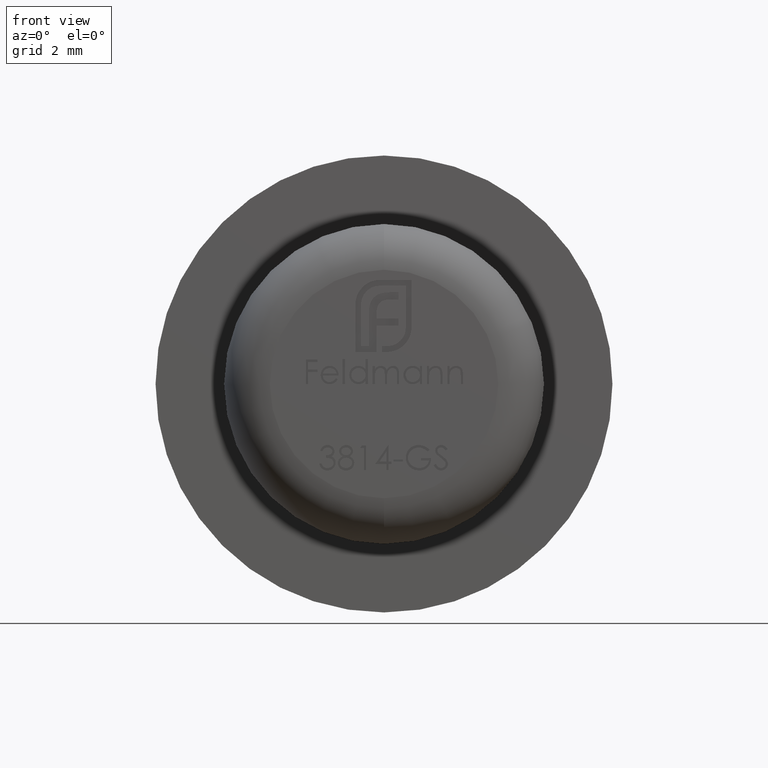
[diagram: clean part render]
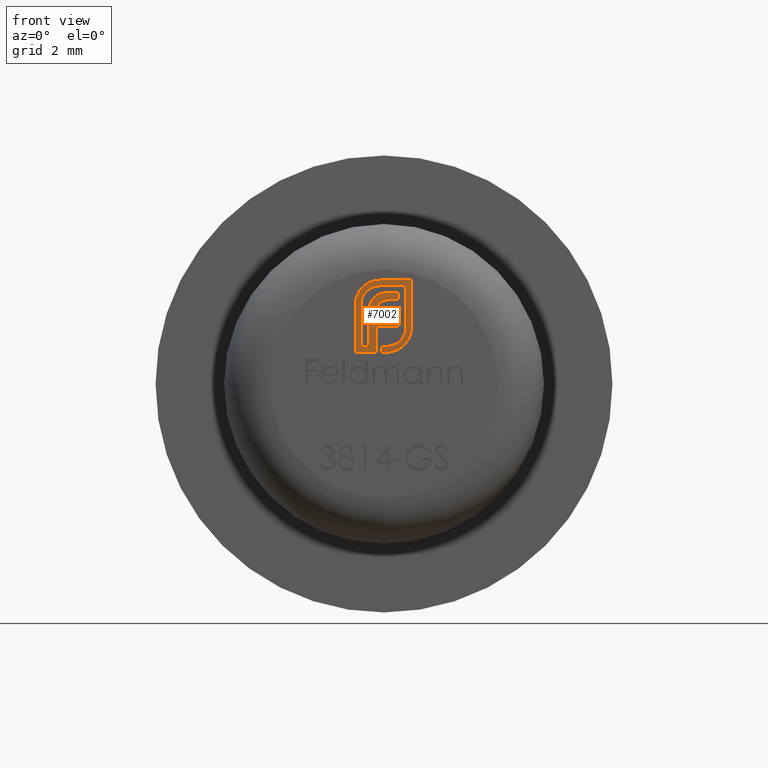
[diagram: same view with one face highlighted and labeled with its STEP entity id]
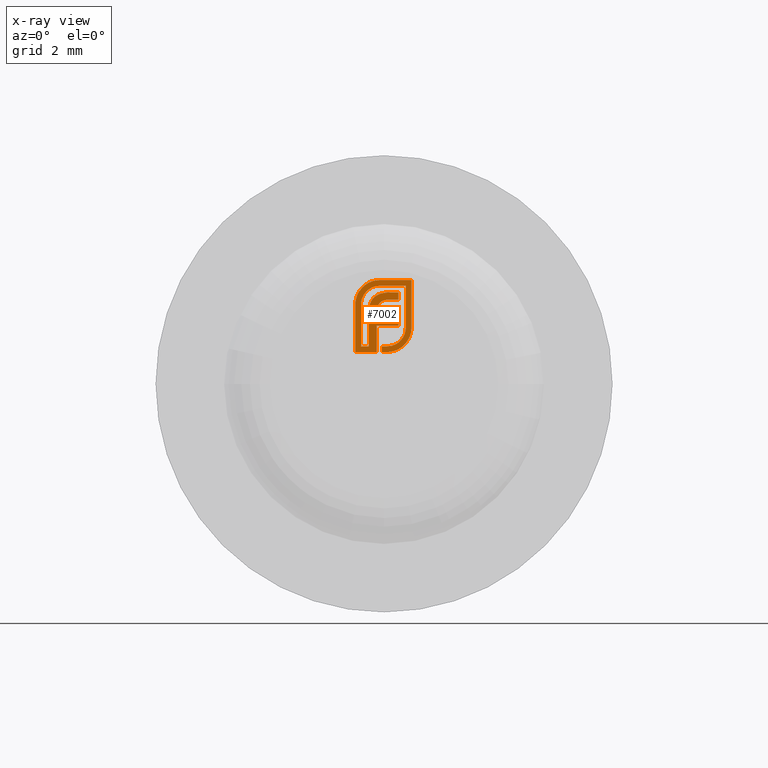
[diagram: x-ray of the same camera — body ghosted, the highlighted face saturated]
A machine part, front view. The second image highlights one B-rep face of the part: STEP entity #7002.
The next image is the same camera in x-ray: the body ghosted, the highlighted face saturated — about 0% of this face is hidden behind the body in this view.
In plain terms, the highlighted planar face has unit normal (0, -1, -0).
Its self-contained STEP definition (entity closure, byte-faithful):
#7 = VECTOR ( 'NONE', #5181, 1000.000000000000000 ) ;
#162 = B_SPLINE_CURVE_WITH_KNOTS ( 'NONE', 3,
 ( #6956, #7006, #3721, #10169, #1714, #1662, #4763 ),
 .UNSPECIFIED., .F., .F.,
 ( 4, 1, 1, 1, 4 ),
 ( 0.000000000000000000, 0.2555069489946573680, 0.5046917175512062315, 0.7514670339421763989, 1.000000000000000000 ),
 .UNSPECIFIED. ) ;
#182 = CARTESIAN_POINT ( 'NONE',  ( 0.3464064807069742735, -1.399999999999999911, 0.7802610010905871585 ) ) ;
#195 = VECTOR ( 'NONE', #7096, 1000.000000000000000 ) ;
#206 = EDGE_CURVE ( 'NONE', #2891, #8756, #13386, .T. ) ;
#235 = CARTESIAN_POINT ( 'NONE',  ( -0.6266778965153044778, -1.399999999999999911, 1.220091287067004426 ) ) ;
#246 = DIRECTION ( 'NONE',  ( -1.000000000000000000, 5.065670863277532666E-13, -2.532835431638766333E-13 ) ) ;
#310 = CARTESIAN_POINT ( 'NONE',  ( -0.3342068085412049361, -1.399999999999999911, 1.551729743573311060 ) ) ;
#317 = CARTESIAN_POINT ( 'NONE',  ( 0.3139810362663770227, -1.399999999999999911, 1.272100415773705251 ) ) ;
#325 = ORIENTED_EDGE ( 'NONE', *, *, #4786, .F. ) ;
#385 = ORIENTED_EDGE ( 'NONE', *, *, #5849, .F. ) ;
#438 = CARTESIAN_POINT ( 'NONE',  ( -0.09342380526944338293, -1.399999999999999911, 1.774855326605143224 ) ) ;
#486 = CARTESIAN_POINT ( 'NONE',  ( -0.3817213211868324962, -1.399999999999999911, 2.028480090051398843 ) ) ;
#510 = CARTESIAN_POINT ( 'NONE',  ( 0.07209144354448078496, -1.400000000000000577, 2.004098269643667329 ) ) ;
#613 = CARTESIAN_POINT ( 'NONE',  ( -0.09342380526944338293, -1.399999999999999911, 1.774855326605143224 ) ) ;
#648 = EDGE_CURVE ( 'NONE', #13918, #12895, #3933, .T. ) ;
#682 = AXIS2_PLACEMENT_3D ( 'NONE', #3416, #4468, #9908 ) ;
#714 = VECTOR ( 'NONE', #4427, 1000.000000000000000 ) ;
#767 = CARTESIAN_POINT ( 'NONE',  ( -0.1538796617843954384, -1.399999999999999689, 1.664595039721976866 ) ) ;
#777 = CARTESIAN_POINT ( 'NONE',  ( -0.6151168595099373304, -1.399999999999999911, 1.851738840814235898 ) ) ;
#799 = CARTESIAN_POINT ( 'NONE',  ( -0.01348384818321865346, -1.399999999999999911, 1.826864455311843827 ) ) ;
#822 = CARTESIAN_POINT ( 'NONE',  ( -0.3817213211868324962, -1.399999999999999911, 2.028480090051398843 ) ) ;
#868 = CARTESIAN_POINT ( 'NONE',  ( -0.6266778965153045888, -1.399999999999999911, 1.740182574134009785 ) ) ;
#869 = LINE ( 'NONE', #8298, #6402 ) ;
#903 = CARTESIAN_POINT ( 'NONE',  ( -0.5464168954247173859, -1.399999999999999911, 2.019811901933615150 ) ) ;
#924 = CARTESIAN_POINT ( 'NONE',  ( 0.09920259734796574302, -1.399999999999999911, 1.844200831547410546 ) ) ;
#953 = CARTESIAN_POINT ( 'NONE',  ( -0.5526862996281267648, -1.399999999999999689, 2.009525745221083071 ) ) ;
#1000 = DIRECTION ( 'NONE',  ( -2.042609219063488015E-15, -1.634087375250790412E-14, -1.000000000000000000 ) ) ;
#1012 = DIRECTION ( 'NONE',  ( -1.000000000000000000, 0.000000000000000000, 0.000000000000000000 ) ) ;
#1022 = CARTESIAN_POINT ( 'NONE',  ( -0.5030759548358003652, -1.399999999999999911, 1.740182574134009785 ) ) ;
#1056 = CARTESIAN_POINT ( 'NONE',  ( 0.2207177529991146692, -1.399999999999999911, 2.004722833728584952 ) ) ;
#1106 = VERTEX_POINT ( 'NONE', #13604 ) ;
#1174 = CARTESIAN_POINT ( 'NONE',  ( -0.09149754124326933691, -1.399999999999999911, 2.273436665379870547 ) ) ;
#1178 = B_SPLINE_CURVE_WITH_KNOTS ( 'NONE', 3,
 ( #12474, #8229, #2943, #10378, #11395, #1836, #7130 ),
 .UNSPECIFIED., .F., .F.,
 ( 4, 1, 1, 1, 4 ),
 ( 0.000000000000000000, 0.2749164360065413648, 0.5318693224296920929, 0.7742077911772953236, 1.000000000000000000 ),
 .UNSPECIFIED. ) ;
#1203 = CARTESIAN_POINT ( 'NONE',  ( -0.05008286468052630669, -1.399999999999999467, 0.7618009708397520674 ) ) ;
#1226 = LINE ( 'NONE', #3328, #714 ) ;
#1241 = VECTOR ( 'NONE', #7304, 1000.000000000000000 ) ;
#1268 = CARTESIAN_POINT ( 'NONE',  ( 0.2492984954248775031, -1.399999999999999911, 0.7321934760755950400 ) ) ;
#1395 = CARTESIAN_POINT ( 'NONE',  ( 0.3254224432789727395, -1.399999999999999911, 0.9142801921724267311 ) ) ;
#1399 = EDGE_CURVE ( 'NONE', #1740, #11941, #9006, .T. ) ;
#1459 = CARTESIAN_POINT ( 'NONE',  ( -0.03011791140350639912, -1.399999999999999467, 1.990236636657559899 ) ) ;
#1589 = CARTESIAN_POINT ( 'NONE',  ( 0.1274544697318524267, -1.399999999999999911, 2.004722833728584952 ) ) ;
#1614 = CARTESIAN_POINT ( 'NONE',  ( -0.1608430461855366589, -1.399999999999999467, 0.7618009708397521784 ) ) ;
#1655 = CARTESIAN_POINT ( 'NONE',  ( -0.09908020847376448892, -1.400000000000000133, 1.768913224541546869 ) ) ;
#1662 = CARTESIAN_POINT ( 'NONE',  ( 0.5414938266690497715, -1.399999999999999911, 0.9910123190655282244 ) ) ;
#1714 = CARTESIAN_POINT ( 'NONE',  ( 0.5630335657239327052, -1.399999999999999467, 1.030972873913230892 ) ) ;
#1725 = CARTESIAN_POINT ( 'NONE',  ( 0.5306857392109624039, -1.399999999999999911, 0.9709611396818222939 ) ) ;
#1740 = VERTEX_POINT ( 'NONE', #13479 ) ;
#1836 = CARTESIAN_POINT ( 'NONE',  ( -0.3102806739426294813, -1.400000000000000133, 1.736502125879358038 ) ) ;
#1915 = EDGE_CURVE ( 'NONE', #2221, #11333, #2158, .T. ) ;
#1926 = VERTEX_POINT ( 'NONE', #11746 ) ;
#1934 = CARTESIAN_POINT ( 'NONE',  ( -0.01348384818321865346, -1.399999999999999911, 1.826864455311843827 ) ) ;
#1955 = CARTESIAN_POINT ( 'NONE',  ( -0.6215648771155739549, -1.399999999999999689, 1.814948668682911270 ) ) ;
#1973 = CARTESIAN_POINT ( 'NONE',  ( 0.2542668514549800696, -1.399999999999999911, 2.273436665379870547 ) ) ;
#1998 = EDGE_CURVE ( 'NONE', #11855, #13918, #7895, .T. ) ;
#2058 = CARTESIAN_POINT ( 'NONE',  ( -0.3059549361573182802, -1.400000000000000133, 1.751098070282329555 ) ) ;
#2059 = CARTESIAN_POINT ( 'NONE',  ( 0.4020854829790100338, -1.399999999999999689, 0.8166518874194858002 ) ) ;
#2069 = VERTEX_POINT ( 'NONE', #3083 ) ;
#2104 = CARTESIAN_POINT ( 'NONE',  ( -0.5020206179872228613, -1.399999999999999689, 1.781359343667026529 ) ) ;
#2118 = CARTESIAN_POINT ( 'NONE',  ( -0.2192730549794841000, -1.399999999999999911, 1.892036388197400498 ) ) ;
#2141 = VERTEX_POINT ( 'NONE', #3363 ) ;
#2158 = LINE ( 'NONE', #8498, #4678 ) ;
#2221 = VERTEX_POINT ( 'NONE', #12133 ) ;
#2227 = B_SPLINE_CURVE_WITH_KNOTS ( 'NONE', 3,
 ( #924, #7349, #9695, #5326, #11755, #12883, #11617 ),
 .UNSPECIFIED., .F., .F.,
 ( 4, 1, 1, 1, 4 ),
 ( 0.000000000000000000, 0.2663974462967137469, 0.5202005568595406970, 0.7659044003744400753, 1.000000000000000000 ),
 .UNSPECIFIED. ) ;
#2257 = B_SPLINE_CURVE_WITH_KNOTS ( 'NONE', 3,
 ( #2570, #13418, #1459, #6926, #510, #8025, #1589 ),
 .UNSPECIFIED., .F., .F.,
 ( 4, 1, 1, 1, 4 ),
 ( 0.000000000000000000, 0.2276569999735642003, 0.4694281465559008715, 0.7260056040721210024, 0.9999999999999998890 ),
 .UNSPECIFIED. ) ;
#2258 = VECTOR ( 'NONE', #246, 1000.000000000000000 ) ;
#2376 = VERTEX_POINT ( 'NONE', #1725 ) ;
#2418 = CARTESIAN_POINT ( 'NONE',  ( 0.1062121804121565760, -1.400000000000000355, 0.8247461958212897182 ) ) ;
#2429 = ORIENTED_EDGE ( 'NONE', *, *, #4527, .F. ) ;
#2439 = VERTEX_POINT ( 'NONE', #9408 ) ;
#2525 = B_SPLINE_CURVE_WITH_KNOTS ( 'NONE', 3,
 ( #4327, #3136, #3277, #13045, #4417, #13941, #1174 ),
 .UNSPECIFIED., .F., .F.,
 ( 4, 1, 1, 1, 4 ),
 ( 0.000000000000000000, 0.2478826274969465893, 0.4929796761389065862, 0.7427507537512864078, 1.000000000000000000 ),
 .UNSPECIFIED. ) ;
#2555 = CARTESIAN_POINT ( 'NONE',  ( 0.1858668806635206394, -1.399999999999999911, 0.8394897203548127296 ) ) ;
#2570 = CARTESIAN_POINT ( 'NONE',  ( -0.07608742903387663570, -1.399999999999999911, 1.976470961344698463 ) ) ;
#2590 = CARTESIAN_POINT ( 'NONE',  ( -0.1424649662289072805, -1.400000000000000133, 1.698560662387370801 ) ) ;
#2598 = CARTESIAN_POINT ( 'NONE',  ( 0.1468700919530100402, -1.399999999999999689, 0.8302980801964835456 ) ) ;
#2629 = CARTESIAN_POINT ( 'NONE',  ( 0.4753705477808834456, -1.399999999999999911, 1.192079645065013960 ) ) ;
#2715 = CARTESIAN_POINT ( 'NONE',  ( 0.09920259734796574302, -1.399999999999999911, 1.844200831547410546 ) ) ;
#2762 = CARTESIAN_POINT ( 'NONE',  ( 0.3648228534734846984, -1.399999999999999689, 0.9528955346264389448 ) ) ;
#2799 = B_SPLINE_CURVE_WITH_KNOTS ( 'NONE', 3,
 ( #182, #11947, #10925, #13039, #1268, #8893, #6698 ),
 .UNSPECIFIED., .F., .F.,
 ( 4, 1, 1, 1, 4 ),
 ( 0.000000000000000000, 0.2488753435753170151, 0.4952112276297841453, 0.7474262806159168715, 0.9999999999999998890 ),
 .UNSPECIFIED. ) ;
#2858 = VERTEX_POINT ( 'NONE', #3261 ) ;
#2864 = CARTESIAN_POINT ( 'NONE',  ( 0.3139810362663770227, -1.399999999999999911, 1.924461832637997860 ) ) ;
#2891 = VERTEX_POINT ( 'NONE', #8977 ) ;
#2934 = CARTESIAN_POINT ( 'NONE',  ( 0.007223490098152914561, -1.400000000000000133, 0.8236019416795042902 ) ) ;
#2943 = CARTESIAN_POINT ( 'NONE',  ( -0.3330290783713795166, -1.399999999999999911, 1.606096214281615531 ) ) ;
#2996 = CARTESIAN_POINT ( 'NONE',  ( -0.2094458852274188876, -1.400000000000000133, 1.901105039930010454 ) ) ;
#3046 = CARTESIAN_POINT ( 'NONE',  ( -0.07608742903387663570, -1.399999999999999911, 1.976470961344698463 ) ) ;
#3083 = CARTESIAN_POINT ( 'NONE',  ( -0.09149754124326933691, -1.399999999999999911, 2.273436665379870547 ) ) ;
#3086 = CARTESIAN_POINT ( 'NONE',  ( 0.3464064807069742735, -1.399999999999999911, 0.7802610010905871585 ) ) ;
#3128 = CARTESIAN_POINT ( 'NONE',  ( -0.2476195453507725464, -1.399999999999999911, 1.862791797831173213 ) ) ;
#3136 = CARTESIAN_POINT ( 'NONE',  ( -0.3355539830052384209, -1.399999999999999911, 2.214888796020728634 ) ) ;
#3142 = CARTESIAN_POINT ( 'NONE',  ( -0.1173544935938992395, -1.399999999999999467, 1.962028224214924510 ) ) ;
#3178 = CARTESIAN_POINT ( 'NONE',  ( -0.5027215687850147274, -1.399999999999999911, 1.754009886957003772 ) ) ;
#3198 = VECTOR ( 'NONE', #8734, 1000.000000000000000 ) ;
#3201 = ORIENTED_EDGE ( 'NONE', *, *, #9132, .F. ) ;
#3253 = EDGE_CURVE ( 'NONE', #10474, #12007, #12919, .T. ) ;
#3261 = CARTESIAN_POINT ( 'NONE',  ( 0.4764293024737254467, -1.399999999999999911, 1.233254091245861161 ) ) ;
#3277 = CARTESIAN_POINT ( 'NONE',  ( -0.2954550143430148545, -1.400000000000000133, 2.236362728851703618 ) ) ;
#3310 = CARTESIAN_POINT ( 'NONE',  ( 0.2020934698024990095, -1.399999999999999911, 0.7184081431567076459 ) ) ;
#3328 = CARTESIAN_POINT ( 'NONE',  ( 0.1924658806152280965, -1.400000000000000133, 2.149834723700366546 ) ) ;
#3356 = VERTEX_POINT ( 'NONE', #10756 ) ;
#3360 = CARTESIAN_POINT ( 'NONE',  ( 0.1029503891757706652, -1.400000000000000577, 0.7006325115128705372 ) ) ;
#3363 = CARTESIAN_POINT ( 'NONE',  ( -0.1627693102117107882, -1.400000000000000133, 1.430375109924343580 ) ) ;
#3374 = ORIENTED_EDGE ( 'NONE', *, *, #6648, .F. ) ;
#3416 = CARTESIAN_POINT ( 'NONE',  ( -0.2283076263732145283, -1.400000000000000133, 2.256591729147437775 ) ) ;
#3434 = LINE ( 'NONE', #2934, #6788 ) ;
#3489 = CARTESIAN_POINT ( 'NONE',  ( 0.3451128414941084244, -1.399999999999999689, 0.9331583640399967461 ) ) ;
#3504 = PLANE ( 'NONE',  #682 ) ;
#3632 = CARTESIAN_POINT ( 'NONE',  ( 0.2926670429109231586, -1.399999999999999911, 0.8904672383340489494 ) ) ;
#3636 = VERTEX_POINT ( 'NONE', #8371 ) ;
#3652 = ORIENTED_EDGE ( 'NONE', *, *, #6953, .F. ) ;
#3721 = CARTESIAN_POINT ( 'NONE',  ( 0.5979295567516516030, -1.399999999999999911, 1.163624047886059110 ) ) ;
#3723 = VERTEX_POINT ( 'NONE', #9756 ) ;
#3786 = LINE ( 'NONE', #11949, #10232 ) ;
#3815 = CARTESIAN_POINT ( 'NONE',  ( -0.1103775231636088816, -1.399999999999999689, 1.757045294603251095 ) ) ;
#3849 = CARTESIAN_POINT ( 'NONE',  ( 0.4294090993714942961, -1.400000000000000133, 1.039915010332884249 ) ) ;
#3861 = CARTESIAN_POINT ( 'NONE',  ( -0.1626641241287705431, -1.399999999999999689, 1.587916566458455581 ) ) ;
#3933 = LINE ( 'NONE', #13381, #12200 ) ;
#3988 = DIRECTION ( 'NONE',  ( 0.000000000000000000, 2.329044075070062101E-14, -1.000000000000000000 ) ) ;
#4096 = CARTESIAN_POINT ( 'NONE',  ( -0.5090059080158666482, -1.399999999999999911, 2.075222156166653509 ) ) ;
#4143 = CARTESIAN_POINT ( 'NONE',  ( -0.5339075503230429343, -1.399999999999999911, 2.038339774101153523 ) ) ;
#4165 = CARTESIAN_POINT ( 'NONE',  ( -0.05008286468052630669, -1.399999999999999911, 0.6999999999999999556 ) ) ;
#4190 = CARTESIAN_POINT ( 'NONE',  ( -0.1895676791302125797, -1.399999999999999689, 1.919448930664849007 ) ) ;
#4270 = CARTESIAN_POINT ( 'NONE',  ( -0.4959877368286570443, -1.400000000000000133, 1.821434026707061005 ) ) ;
#4285 = CARTESIAN_POINT ( 'NONE',  ( -0.1549536195330045163, -1.400000000000000577, 1.941899743624573293 ) ) ;
#4300 = B_SPLINE_CURVE_WITH_KNOTS ( 'NONE', 3,
 ( #4670, #4949, #5931, #12491, #10349, #13585, #12302, #11365, #8052, #10211, #486 ),
 .UNSPECIFIED., .F., .F.,
 ( 4, 1, 1, 1, 1, 1, 1, 1, 4 ),
 ( 0.000000000000000000, 0.1301676365660976442, 0.2555231392837343796, 0.3790297504302641007, 0.5002170846485114453, 0.6227425632618522888, 0.7453202992625188594, 0.8707857905346592098, 0.9999999999999998890 ),
 .UNSPECIFIED. ) ;
#4320 = CARTESIAN_POINT ( 'NONE',  ( 0.4510574722669823955, -1.400000000000000577, 0.8619254455174258922 ) ) ;
#4327 = CARTESIAN_POINT ( 'NONE',  ( -0.3557167568334823060, -1.399999999999999911, 2.204091160437603225 ) ) ;
#4387 = DIRECTION ( 'NONE',  ( 1.000000000000000000, 0.000000000000000000, 0.000000000000000000 ) ) ;
#4407 = CARTESIAN_POINT ( 'NONE',  ( 0.1407958647626590121, -1.399999999999999689, 0.7050845955702828016 ) ) ;
#4417 = CARTESIAN_POINT ( 'NONE',  ( -0.1619744936170346705, -1.400000000000000133, 2.271338766088632166 ) ) ;
#4427 = DIRECTION ( 'NONE',  ( -1.000000000000000000, 0.000000000000000000, 0.000000000000000000 ) ) ;
#4451 = ORIENTED_EDGE ( 'NONE', *, *, #1998, .F. ) ;
#4468 = DIRECTION ( 'NONE',  ( 8.331963062060267283E-15, -1.000000000000000000, -1.555854385641174220E-14 ) ) ;
#4471 = VERTEX_POINT ( 'NONE', #9731 ) ;
#4527 = EDGE_CURVE ( 'NONE', #6182, #12108, #1178, .T. ) ;
#4584 = CARTESIAN_POINT ( 'NONE',  ( 0.3550746688247577443, -1.399999999999999911, 0.9427092672979356935 ) ) ;
#4625 = LINE ( 'NONE', #1973, #13063 ) ;
#4643 = ORIENTED_EDGE ( 'NONE', *, *, #11603, .F. ) ;
#4670 = CARTESIAN_POINT ( 'NONE',  ( -0.09149754124326933691, -1.399999999999999911, 2.149834723700366546 ) ) ;
#4678 = VECTOR ( 'NONE', #1012, 1000.000000000000000 ) ;
#4697 = VERTEX_POINT ( 'NONE', #12715 ) ;
#4759 = CARTESIAN_POINT ( 'NONE',  ( -0.1454329339761439022, -1.399999999999999911, 1.690420753457845704 ) ) ;
#4763 = CARTESIAN_POINT ( 'NONE',  ( 0.5306857392109624039, -1.399999999999999911, 0.9709611396818222939 ) ) ;
#4786 = EDGE_CURVE ( 'NONE', #5172, #6182, #3786, .T. ) ;
#4813 = DIRECTION ( 'NONE',  ( 0.000000000000000000, 2.814261590709661133E-14, -1.000000000000000000 ) ) ;
#4871 = CARTESIAN_POINT ( 'NONE',  ( -0.5030759548358003652, -1.399999999999999911, 0.8236019416795041792 ) ) ;
#4889 = CARTESIAN_POINT ( 'NONE',  ( -0.02117397403434284620, -1.400000000000000133, 1.823847814885597662 ) ) ;
#4902 = CARTESIAN_POINT ( 'NONE',  ( -0.1366348529984588722, -1.399999999999999689, 1.714550253510404687 ) ) ;
#4926 = VERTEX_POINT ( 'NONE', #8164 ) ;
#4934 = CARTESIAN_POINT ( 'NONE',  ( 0.4469679867337273960, -1.399999999999999911, 1.075592871405559592 ) ) ;
#4949 = CARTESIAN_POINT ( 'NONE',  ( -0.1055397707212932246, -1.399999999999999911, 2.149492137366322275 ) ) ;
#4951 = VERTEX_POINT ( 'NONE', #9367 ) ;
#4970 = EDGE_CURVE ( 'NONE', #4951, #10474, #9023, .T. ) ;
#4981 = CARTESIAN_POINT ( 'NONE',  ( 0.4760737686980853201, -1.399999999999999911, 1.219427558613193741 ) ) ;
#4991 = CARTESIAN_POINT ( 'NONE',  ( -0.3342068085412049361, -1.399999999999999911, 0.8236019416795041792 ) ) ;
#5028 = CARTESIAN_POINT ( 'NONE',  ( -0.05730400147533501465, -1.399999999999999689, 1.805685100437080637 ) ) ;
#5047 = CARTESIAN_POINT ( 'NONE',  ( -0.6264640054634361688, -1.399999999999999911, 1.752716887515574529 ) ) ;
#5055 = DIRECTION ( 'NONE',  ( 0.000000000000000000, 0.000000000000000000, -1.000000000000000000 ) ) ;
#5064 = ORIENTED_EDGE ( 'NONE', *, *, #10852, .F. ) ;
#5097 = CARTESIAN_POINT ( 'NONE',  ( -0.3059549361573182802, -1.400000000000000133, 1.751098070282329555 ) ) ;
#5128 = CARTESIAN_POINT ( 'NONE',  ( -0.5809495994588784740, -1.399999999999999911, 1.956476901872884477 ) ) ;
#5169 = CARTESIAN_POINT ( 'NONE',  ( -0.3748704660597836913, -1.399999999999999467, 2.192018243577149583 ) ) ;
#5172 = VERTEX_POINT ( 'NONE', #4991 ) ;
#5181 = DIRECTION ( 'NONE',  ( -7.288735055075348334E-15, 1.457747011015069667E-14, -1.000000000000000000 ) ) ;
#5201 = CARTESIAN_POINT ( 'NONE',  ( -0.1608430461855366589, -1.399999999999999911, 0.8236019416795041792 ) ) ;
#5229 = CARTESIAN_POINT ( 'NONE',  ( 0.6000312441532296148, -1.399999999999999911, 1.753345378312865854 ) ) ;
#5244 = ORIENTED_EDGE ( 'NONE', *, *, #7931, .F. ) ;
#5249 = CARTESIAN_POINT ( 'NONE',  ( -0.4731241885318022145, -1.400000000000000355, 1.897047492734142971 ) ) ;
#5292 = CARTESIAN_POINT ( 'NONE',  ( -0.2911141495599591789, -1.399999999999999911, 1.791517842024765272 ) ) ;
#5294 = VECTOR ( 'NONE', #5055, 1000.000000000000000 ) ;
#5310 = CARTESIAN_POINT ( 'NONE',  ( 0.4764293024737255577, -1.399999999999999911, 1.691544407473114076 ) ) ;
#5326 = CARTESIAN_POINT ( 'NONE',  ( 0.04007008979541878957, -1.400000000000000355, 1.840403250061235507 ) ) ;
#5349 = CARTESIAN_POINT ( 'NONE',  ( -0.09004698445215261748, -1.399999999999999467, 1.971585365737057893 ) ) ;
#5357 = VERTEX_POINT ( 'NONE', #9005 ) ;
#5394 = ORIENTED_EDGE ( 'NONE', *, *, #3253, .F. ) ;
#5473 = CARTESIAN_POINT ( 'NONE',  ( 0.06452984487683213755, -1.399999999999999911, 0.6999999999999999556 ) ) ;
#5499 = EDGE_CURVE ( 'NONE', #13526, #1926, #12006, .T. ) ;
#5500 = EDGE_CURVE ( 'NONE', #5708, #2141, #7481, .T. ) ;
#5504 = ORIENTED_EDGE ( 'NONE', *, *, #10888, .F. ) ;
#5520 = EDGE_CURVE ( 'NONE', #2069, #3356, #4625, .T. ) ;
#5527 = DIRECTION ( 'NONE',  ( 0.000000000000000000, -1.008093704134804478E-14, 1.000000000000000000 ) ) ;
#5639 = DIRECTION ( 'NONE',  ( 0.000000000000000000, 8.008965791742958612E-15, -1.000000000000000000 ) ) ;
#5698 = CARTESIAN_POINT ( 'NONE',  ( 0.2230575213111381794, -1.399999999999999911, 0.8529711264073543964 ) ) ;
#5708 = VERTEX_POINT ( 'NONE', #11072 ) ;
#5743 = CARTESIAN_POINT ( 'NONE',  ( 0.06452984487683213755, -1.399999999999999911, 0.8236019416795041792 ) ) ;
#5803 = EDGE_CURVE ( 'NONE', #1106, #2891, #2257, .T. ) ;
#5827 = VERTEX_POINT ( 'NONE', #10237 ) ;
#5849 = EDGE_CURVE ( 'NONE', #5357, #4926, #3434, .T. ) ;
#5896 = CARTESIAN_POINT ( 'NONE',  ( 0.3139810362663769117, -1.399999999999999467, 1.351237762849023971 ) ) ;
#5931 = CARTESIAN_POINT ( 'NONE',  ( -0.1331051061105184286, -1.399999999999999467, 2.148819629684227017 ) ) ;
#5955 = B_SPLINE_CURVE_WITH_KNOTS ( 'NONE', 3,
 ( #8699, #3310, #9846, #4407, #3360, #11943, #5473 ),
 .UNSPECIFIED., .F., .F.,
 ( 4, 1, 1, 1, 4 ),
 ( 0.000000000000000000, 0.2473874333444885110, 0.4947477175549528927, 0.7459427166409734467, 1.000000000000000000 ),
 .UNSPECIFIED. ) ;
#5976 = CARTESIAN_POINT ( 'NONE',  ( -0.1482155240154463816, -1.399999999999999911, 1.681913035980658444 ) ) ;
#6051 = B_SPLINE_CURVE_WITH_KNOTS ( 'NONE', 3,
 ( #2118, #2996, #4190, #4285, #3142, #5349, #3046 ),
 .UNSPECIFIED., .F., .F.,
 ( 4, 1, 1, 1, 4 ),
 ( 0.000000000000000000, 0.2388456722702020640, 0.4831323380584821581, 0.7357780699317982842, 1.000000000000000000 ),
 .UNSPECIFIED. ) ;
#6133 = CARTESIAN_POINT ( 'NONE',  ( -0.6260368485449662179, -1.399999999999999689, 1.777748877551800000 ) ) ;
#6139 = ORIENTED_EDGE ( 'NONE', *, *, #9501, .F. ) ;
#6151 = ORIENTED_EDGE ( 'NONE', *, *, #12824, .F. ) ;
#6182 = VERTEX_POINT ( 'NONE', #310 ) ;
#6190 = ORIENTED_EDGE ( 'NONE', *, *, #9060, .F. ) ;
#6292 = CARTESIAN_POINT ( 'NONE',  ( -0.4868423366782002604, -1.399999999999999911, 1.860160582183996825 ) ) ;
#6311 = EDGE_CURVE ( 'NONE', #4926, #3636, #11910, .T. ) ;
#6372 = VECTOR ( 'NONE', #9034, 1000.000000000000000 ) ;
#6402 = VECTOR ( 'NONE', #1000, 1000.000000000000000 ) ;
#6474 = CARTESIAN_POINT ( 'NONE',  ( 0.4949952461730393605, -1.399999999999999911, 0.9130370516081753873 ) ) ;
#6606 = LINE ( 'NONE', #8502, #1241 ) ;
#6610 = ORIENTED_EDGE ( 'NONE', *, *, #9411, .F. ) ;
#6648 = EDGE_CURVE ( 'NONE', #6748, #11807, #9372, .T. ) ;
#6698 = CARTESIAN_POINT ( 'NONE',  ( 0.2141363509096865791, -1.399999999999999911, 0.7218309922966397174 ) ) ;
#6732 = LINE ( 'NONE', #8197, #195 ) ;
#6748 = VERTEX_POINT ( 'NONE', #12288 ) ;
#6788 = VECTOR ( 'NONE', #10502, 1000.000000000000000 ) ;
#6841 = B_SPLINE_CURVE_WITH_KNOTS ( 'NONE', 3,
 ( #903, #4143, #4096, #13947, #9488, #5169, #11730 ),
 .UNSPECIFIED., .F., .F.,
 ( 4, 1, 1, 1, 4 ),
 ( 0.000000000000000000, 0.2502307454963356714, 0.4981201228331106901, 0.7465600120008946128, 1.000000000000000000 ),
 .UNSPECIFIED. ) ;
#6854 = CARTESIAN_POINT ( 'NONE',  ( 0.6000312441532296148, -1.399999999999999911, 1.233254091245861161 ) ) ;
#6917 = VERTEX_POINT ( 'NONE', #7558 ) ;
#6926 = CARTESIAN_POINT ( 'NONE',  ( 0.01926100663558278497, -1.400000000000000133, 1.998219637268194626 ) ) ;
#6953 = EDGE_CURVE ( 'NONE', #3723, #2069, #2525, .T. ) ;
#6956 = CARTESIAN_POINT ( 'NONE',  ( 0.6000312441532296148, -1.399999999999999911, 1.233254091245861161 ) ) ;
#7002 = ADVANCED_FACE ( 'NONE', ( #13731 ), #3504, .T. ) ;
#7006 = CARTESIAN_POINT ( 'NONE',  ( 0.5993248554691271712, -1.399999999999999911, 1.209851051066816785 ) ) ;
#7050 = CARTESIAN_POINT ( 'NONE',  ( -0.1624574979669934638, -1.399999999999999689, 1.607918461574594060 ) ) ;
#7096 = DIRECTION ( 'NONE',  ( -1.000000000000000000, 0.000000000000000000, 0.000000000000000000 ) ) ;
#7130 = CARTESIAN_POINT ( 'NONE',  ( -0.3059549361573182802, -1.400000000000000133, 1.751098070282329555 ) ) ;
#7176 = CARTESIAN_POINT ( 'NONE',  ( -0.1627693102117107604, -1.400000000000000133, 1.504054708925502748 ) ) ;
#7215 = LINE ( 'NONE', #5229, #7 ) ;
#7235 = CARTESIAN_POINT ( 'NONE',  ( -0.6048469042186648270, -1.399999999999999911, 1.887541772136327456 ) ) ;
#7304 = DIRECTION ( 'NONE',  ( 1.000000000000000000, 0.000000000000000000, 5.065670863277532666E-13 ) ) ;
#7349 = CARTESIAN_POINT ( 'NONE',  ( 0.08902577504019590360, -1.400000000000000133, 1.844054699818017395 ) ) ;
#7374 = CARTESIAN_POINT ( 'NONE',  ( -0.5651611366588917829, -1.399999999999999467, 1.989058389073912192 ) ) ;
#7380 = ORIENTED_EDGE ( 'NONE', *, *, #9438, .F. ) ;
#7392 = EDGE_CURVE ( 'NONE', #2858, #4471, #13228, .T. ) ;
#7406 = CARTESIAN_POINT ( 'NONE',  ( 0.5306857392109624039, -1.399999999999999911, 0.9709611396818222939 ) ) ;
#7451 = CARTESIAN_POINT ( 'NONE',  ( -0.4350181559370149276, -1.399999999999999689, 1.966365976757652456 ) ) ;
#7481 = LINE ( 'NONE', #7176, #11212 ) ;
#7519 = DIRECTION ( 'NONE',  ( 2.002241447935739653E-15, 0.000000000000000000, 1.000000000000000000 ) ) ;
#7558 = CARTESIAN_POINT ( 'NONE',  ( 0.2141363509096865791, -1.399999999999999911, 0.7218309922966397174 ) ) ;
#7572 = ORIENTED_EDGE ( 'NONE', *, *, #12594, .F. ) ;
#7622 = CARTESIAN_POINT ( 'NONE',  ( -0.1618061781986236680, -1.399999999999999689, 0.6999999999999998446 ) ) ;
#7727 = CARTESIAN_POINT ( 'NONE',  ( -0.1627693102117107604, -1.399999999999999911, 1.272100415773705251 ) ) ;
#7744 = DIRECTION ( 'NONE',  ( 7.288735055075454041E-15, 2.915494022030181617E-14, 1.000000000000000000 ) ) ;
#7755 = VECTOR ( 'NONE', #4813, 1000.000000000000000 ) ;
#7790 = VERTEX_POINT ( 'NONE', #5201 ) ;
#7798 = VERTEX_POINT ( 'NONE', #12760 ) ;
#7840 = CARTESIAN_POINT ( 'NONE',  ( -0.5464168954247173859, -1.399999999999999911, 2.019811901933615150 ) ) ;
#7872 = EDGE_CURVE ( 'NONE', #12108, #8710, #13373, .T. ) ;
#7895 = B_SPLINE_CURVE_WITH_KNOTS ( 'NONE', 3,
 ( #822, #13958, #13265, #7451, #11856, #5249, #6292, #4270, #2104, #3178, #13846 ),
 .UNSPECIFIED., .F., .F.,
 ( 4, 1, 1, 1, 1, 1, 1, 1, 4 ),
 ( 0.000000000000000000, 0.1299541017781118413, 0.2553417738977997176, 0.3786214011607276220, 0.5005149294441256780, 0.6227350536060328734, 0.7450081672021064971, 0.8710814669268083232, 1.000000000000000000 ),
 .UNSPECIFIED. ) ;
#7931 = EDGE_CURVE ( 'NONE', #7798, #6917, #2799, .T. ) ;
#8025 = CARTESIAN_POINT ( 'NONE',  ( 0.1086006352231480704, -1.400000000000000133, 2.004510138926511420 ) ) ;
#8052 = CARTESIAN_POINT ( 'NONE',  ( -0.3521725087863735171, -1.399999999999999689, 2.057530886350274368 ) ) ;
#8164 = CARTESIAN_POINT ( 'NONE',  ( 0.06452984487683213755, -1.399999999999999911, 0.8236019416795041792 ) ) ;
#8167 = CARTESIAN_POINT ( 'NONE',  ( -0.6266778965153045888, -1.399999999999999911, 0.6999999999999999556 ) ) ;
#8197 = CARTESIAN_POINT ( 'NONE',  ( 0.007223490098152921500, -1.399999999999999911, 0.6999999999999998446 ) ) ;
#8205 = CARTESIAN_POINT ( 'NONE',  ( -0.6048469042186648270, -1.399999999999999911, 1.887541772136327456 ) ) ;
#8228 = ORIENTED_EDGE ( 'NONE', *, *, #1915, .F. ) ;
#8229 = CARTESIAN_POINT ( 'NONE',  ( -0.3338054908710798019, -1.399999999999999911, 1.570255400737055496 ) ) ;
#8281 = ORIENTED_EDGE ( 'NONE', *, *, #9577, .F. ) ;
#8297 = CARTESIAN_POINT ( 'NONE',  ( -0.1627693102117107604, -1.399999999999999911, 1.577734307926661250 ) ) ;
#8298 = CARTESIAN_POINT ( 'NONE',  ( -0.1627693102117107604, -1.399999999999999911, 1.047851178726604937 ) ) ;
#8357 = ORIENTED_EDGE ( 'NONE', *, *, #8866, .F. ) ;
#8371 = CARTESIAN_POINT ( 'NONE',  ( 0.3550746688247577443, -1.399999999999999911, 0.9427092672979356935 ) ) ;
#8378 = ORIENTED_EDGE ( 'NONE', *, *, #10233, .F. ) ;
#8396 = CARTESIAN_POINT ( 'NONE',  ( -0.6082705197882013470, -1.400000000000000133, 1.875606425814662526 ) ) ;
#8472 = LINE ( 'NONE', #13744, #10676 ) ;
#8498 = CARTESIAN_POINT ( 'NONE',  ( 0.2065918168071713967, -1.399999999999999689, 1.844200831547410546 ) ) ;
#8502 = CARTESIAN_POINT ( 'NONE',  ( -0.1618061781986237235, -1.399999999999999911, 0.8236019416795042902 ) ) ;
#8521 = DIRECTION ( 'NONE',  ( 1.000000000000000000, 0.000000000000000000, 0.000000000000000000 ) ) ;
#8534 = DIRECTION ( 'NONE',  ( -1.000000000000000000, 0.000000000000000000, 0.000000000000000000 ) ) ;
#8541 = ORIENTED_EDGE ( 'NONE', *, *, #12274, .F. ) ;
#8561 = EDGE_CURVE ( 'NONE', #8710, #1106, #6051, .T. ) ;
#8603 = CARTESIAN_POINT ( 'NONE',  ( -0.2706762784780143427, -1.400000000000000133, 1.828526872843161621 ) ) ;
#8611 = EDGE_CURVE ( 'NONE', #13717, #3723, #6841, .T. ) ;
#8629 = B_SPLINE_CURVE_WITH_KNOTS ( 'NONE', 3,
 ( #7406, #11809, #6474, #4320, #2059, #12761, #3086 ),
 .UNSPECIFIED., .F., .F.,
 ( 4, 1, 1, 1, 4 ),
 ( 0.000000000000000000, 0.2562042022885817061, 0.5044120477612346054, 0.7520698955827886945, 1.000000000000000000 ),
 .UNSPECIFIED. ) ;
#8688 = CARTESIAN_POINT ( 'NONE',  ( 0.06452984487683213755, -1.399999999999999911, 0.6999999999999999556 ) ) ;
#8699 = CARTESIAN_POINT ( 'NONE',  ( 0.2141363509096865791, -1.399999999999999911, 0.7218309922966397174 ) ) ;
#8710 = VERTEX_POINT ( 'NONE', #13337 ) ;
#8734 = DIRECTION ( 'NONE',  ( 8.794567470967815287E-16, 2.814261590709700892E-14, 1.000000000000000000 ) ) ;
#8739 = ORIENTED_EDGE ( 'NONE', *, *, #8561, .F. ) ;
#8756 = VERTEX_POINT ( 'NONE', #10103 ) ;
#8866 = EDGE_CURVE ( 'NONE', #3636, #2858, #9323, .T. ) ;
#8893 = CARTESIAN_POINT ( 'NONE',  ( 0.2258626163617173388, -1.399999999999999911, 0.7252867893536678601 ) ) ;
#8948 = VERTEX_POINT ( 'NONE', #8688 ) ;
#8977 = CARTESIAN_POINT ( 'NONE',  ( 0.1274544697318524267, -1.399999999999999911, 2.004722833728584952 ) ) ;
#9005 = CARTESIAN_POINT ( 'NONE',  ( -0.05008286468052630669, -1.399999999999999911, 0.8236019416795041792 ) ) ;
#9006 = B_SPLINE_CURVE_WITH_KNOTS ( 'NONE', 3,
 ( #868, #5047, #6133, #1955, #777, #8396, #8205 ),
 .UNSPECIFIED., .F., .F.,
 ( 4, 1, 1, 1, 4 ),
 ( 0.000000000000000000, 0.2514026055896922962, 0.5020703828466558383, 0.7510027753359522773, 0.9999999999999998890 ),
 .UNSPECIFIED. ) ;
#9023 = LINE ( 'NONE', #5896, #5294 ) ;
#9034 = DIRECTION ( 'NONE',  ( 1.000000000000000000, -2.046735702334325196E-14, 1.023367851167162598E-14 ) ) ;
#9060 = EDGE_CURVE ( 'NONE', #5827, #7790, #6606, .T. ) ;
#9071 = CARTESIAN_POINT ( 'NONE',  ( 0.2588702814360326898, -1.399999999999999689, 0.8694506337185504696 ) ) ;
#9124 = ORIENTED_EDGE ( 'NONE', *, *, #10873, .F. ) ;
#9132 = EDGE_CURVE ( 'NONE', #2141, #4951, #8472, .T. ) ;
#9141 = LINE ( 'NONE', #2864, #12856 ) ;
#9216 = ORIENTED_EDGE ( 'NONE', *, *, #13175, .F. ) ;
#9239 = CARTESIAN_POINT ( 'NONE',  ( 0.3550746688247577443, -1.399999999999999911, 0.9427092672979356935 ) ) ;
#9254 = CARTESIAN_POINT ( 'NONE',  ( -0.1584986914934941871, -1.399999999999999911, 1.636917436155409078 ) ) ;
#9266 = LINE ( 'NONE', #13364, #6372 ) ;
#9282 = CARTESIAN_POINT ( 'NONE',  ( 0.4764293024737254467, -1.399999999999999911, 1.233254091245861161 ) ) ;
#9323 = B_SPLINE_CURVE_WITH_KNOTS ( 'NONE', 3,
 ( #9239, #2762, #10335, #10197, #3849, #4934, #12475, #10152, #2629, #4981, #9282 ),
 .UNSPECIFIED., .F., .F.,
 ( 4, 1, 1, 1, 1, 1, 1, 1, 4 ),
 ( 0.000000000000000000, 0.1306323763146408357, 0.2560617239099407527, 0.3794489883599221902, 0.5019391702453820381, 0.6240267406620521040, 0.7465329994844345229, 0.8718523902103637591, 1.000000000000000000 ),
 .UNSPECIFIED. ) ;
#9367 = CARTESIAN_POINT ( 'NONE',  ( 0.3139810362663770227, -1.399999999999999911, 1.430375109924343358 ) ) ;
#9372 = LINE ( 'NONE', #7622, #2258 ) ;
#9408 = CARTESIAN_POINT ( 'NONE',  ( -0.09149754124326933691, -1.399999999999999911, 2.149834723700366546 ) ) ;
#9411 = EDGE_CURVE ( 'NONE', #1926, #4697, #11290, .T. ) ;
#9438 = EDGE_CURVE ( 'NONE', #8756, #2221, #9141, .T. ) ;
#9488 = CARTESIAN_POINT ( 'NONE',  ( -0.4128000023957008047, -1.399999999999999911, 2.168110595542572572 ) ) ;
#9500 = ORIENTED_EDGE ( 'NONE', *, *, #648, .F. ) ;
#9501 = EDGE_CURVE ( 'NONE', #11941, #13717, #11479, .T. ) ;
#9577 = EDGE_CURVE ( 'NONE', #4471, #2439, #1226, .T. ) ;
#9615 = CARTESIAN_POINT ( 'NONE',  ( -0.2286748558361615113, -1.399999999999999911, 1.882336710700927673 ) ) ;
#9695 = CARTESIAN_POINT ( 'NONE',  ( 0.06915325484469060646, -1.400000000000000133, 1.843769344954215850 ) ) ;
#9731 = CARTESIAN_POINT ( 'NONE',  ( 0.4764293024737254467, -1.399999999999999911, 2.149834723700366546 ) ) ;
#9756 = CARTESIAN_POINT ( 'NONE',  ( -0.3557167568334823060, -1.399999999999999911, 2.204091160437603225 ) ) ;
#9846 = CARTESIAN_POINT ( 'NONE',  ( 0.1780090292146463138, -1.400000000000000355, 0.7115628205118903482 ) ) ;
#9908 = DIRECTION ( 'NONE',  ( 0.000000000000000000, 1.555854385641174220E-14, -1.000000000000000000 ) ) ;
#10067 = ORIENTED_EDGE ( 'NONE', *, *, #206, .F. ) ;
#10103 = CARTESIAN_POINT ( 'NONE',  ( 0.3139810362663770782, -1.400000000000000133, 2.004722833728585396 ) ) ;
#10113 = EDGE_LOOP ( 'NONE', ( #3652, #12426, #6139, #12462, #4643, #3374, #9124, #6190, #13591, #5394, #13022, #3201, #12681, #9216, #6610, #11089, #12885, #8228, #7380, #10067, #12468, #8739, #11493, #2429, #325, #6151, #9500, #4451, #5064, #8281, #11287, #8357, #13472, #385, #10352, #5504, #8378, #5244, #7572, #13834, #8541, #13332 ) ) ;
#10152 = CARTESIAN_POINT ( 'NONE',  ( 0.4693387668097390164, -1.400000000000000355, 1.151890617149351259 ) ) ;
#10169 = CARTESIAN_POINT ( 'NONE',  ( 0.5839171595975465312, -1.400000000000000133, 1.096080714930364852 ) ) ;
#10197 = CARTESIAN_POINT ( 'NONE',  ( 0.4084224739838044904, -1.399999999999999911, 1.005766896393499810 ) ) ;
#10211 = CARTESIAN_POINT ( 'NONE',  ( -0.3717755358188183368, -1.399999999999999911, 2.038258249012333323 ) ) ;
#10232 = VECTOR ( 'NONE', #5527, 1000.000000000000000 ) ;
#10233 = EDGE_CURVE ( 'NONE', #6917, #8948, #5955, .T. ) ;
#10237 = CARTESIAN_POINT ( 'NONE',  ( -0.1627693102117107604, -1.399999999999999911, 0.8236019416795041792 ) ) ;
#10308 = LINE ( 'NONE', #235, #12652 ) ;
#10335 = CARTESIAN_POINT ( 'NONE',  ( 0.3839309569663987842, -1.399999999999999911, 0.9728623548430577195 ) ) ;
#10344 = DIRECTION ( 'NONE',  ( 0.000000000000000000, 2.132914047695746370E-14, -1.000000000000000000 ) ) ;
#10349 = CARTESIAN_POINT ( 'NONE',  ( -0.2124967267454798692, -1.399999999999999689, 2.133612086679311126 ) ) ;
#10352 = ORIENTED_EDGE ( 'NONE', *, *, #10691, .F. ) ;
#10376 = VECTOR ( 'NONE', #7519, 1000.000000000000000 ) ;
#10378 = CARTESIAN_POINT ( 'NONE',  ( -0.3279635372738976540, -1.400000000000000133, 1.658069276380811585 ) ) ;
#10474 = VERTEX_POINT ( 'NONE', #317 ) ;
#10502 = DIRECTION ( 'NONE',  ( 1.000000000000000000, -2.979806390163196524E-14, 0.000000000000000000 ) ) ;
#10545 = DIRECTION ( 'NONE',  ( 1.000000000000000000, 0.000000000000000000, -1.535051776750729303E-14 ) ) ;
#10623 = CARTESIAN_POINT ( 'NONE',  ( 0.07560586302733310338, -1.399999999999999911, 1.272100415773705251 ) ) ;
#10676 = VECTOR ( 'NONE', #10545, 1000.000000000000000 ) ;
#10691 = EDGE_CURVE ( 'NONE', #11868, #5357, #12483, .T. ) ;
#10756 = CARTESIAN_POINT ( 'NONE',  ( 0.6000312441532296148, -1.399999999999999911, 2.273436665379870547 ) ) ;
#10816 = CARTESIAN_POINT ( 'NONE',  ( -0.6048469042186648270, -1.399999999999999911, 1.887541772136327456 ) ) ;
#10852 = EDGE_CURVE ( 'NONE', #2439, #11855, #4300, .T. ) ;
#10856 = EDGE_CURVE ( 'NONE', #13261, #2376, #162, .T. ) ;
#10873 = EDGE_CURVE ( 'NONE', #7790, #6748, #12146, .T. ) ;
#10888 = EDGE_CURVE ( 'NONE', #8948, #11868, #6732, .T. ) ;
#10925 = CARTESIAN_POINT ( 'NONE',  ( 0.3156529678472712597, -1.399999999999999689, 0.7615167598564126505 ) ) ;
#11041 = EDGE_CURVE ( 'NONE', #12007, #5827, #869, .T. ) ;
#11072 = CARTESIAN_POINT ( 'NONE',  ( -0.1627693102117107604, -1.399999999999999911, 1.577734307926661250 ) ) ;
#11088 = B_SPLINE_CURVE_WITH_KNOTS ( 'NONE', 3,
 ( #13535, #5976, #767, #9254, #7050, #3861, #8297 ),
 .UNSPECIFIED., .F., .F.,
 ( 4, 1, 1, 1, 4 ),
 ( 0.000000000000000000, 0.2341368012037813029, 0.4766002465572260482, 0.7335556668961940030, 1.000000000000000000 ),
 .UNSPECIFIED. ) ;
#11089 = ORIENTED_EDGE ( 'NONE', *, *, #5499, .F. ) ;
#11212 = VECTOR ( 'NONE', #3988, 1000.000000000000000 ) ;
#11287 = ORIENTED_EDGE ( 'NONE', *, *, #7392, .F. ) ;
#11290 = B_SPLINE_CURVE_WITH_KNOTS ( 'NONE', 3,
 ( #438, #1655, #3815, #11362, #4902, #2590, #4759 ),
 .UNSPECIFIED., .F., .F.,
 ( 4, 1, 1, 1, 4 ),
 ( 0.000000000000000000, 0.2455891591026255760, 0.4905057002791304299, 0.7406289399192058642, 1.000000000000000000 ),
 .UNSPECIFIED. ) ;
#11333 = VERTEX_POINT ( 'NONE', #2715 ) ;
#11362 = CARTESIAN_POINT ( 'NONE',  ( -0.1238460588436370718, -1.399999999999999911, 1.736275374665290139 ) ) ;
#11365 = CARTESIAN_POINT ( 'NONE',  ( -0.3193260113208987727, -1.399999999999999911, 2.081697033816605646 ) ) ;
#11395 = CARTESIAN_POINT ( 'NONE',  ( -0.3192491435412384004, -1.400000000000000133, 1.706240632895305698 ) ) ;
#11455 = CARTESIAN_POINT ( 'NONE',  ( -0.5944844204397096155, -1.400000000000000133, 1.922703916651518741 ) ) ;
#11479 = B_SPLINE_CURVE_WITH_KNOTS ( 'NONE', 3,
 ( #7235, #12488, #11455, #5128, #7374, #953, #11779 ),
 .UNSPECIFIED., .F., .F.,
 ( 4, 1, 1, 1, 4 ),
 ( 0.000000000000000000, 0.2525737193840850714, 0.5047887723702161322, 0.7511246564246851776, 1.000000000000000000 ),
 .UNSPECIFIED. ) ;
#11491 = CARTESIAN_POINT ( 'NONE',  ( -0.03632626581863863252, -1.399999999999999689, 1.817903956900477125 ) ) ;
#11493 = ORIENTED_EDGE ( 'NONE', *, *, #7872, .F. ) ;
#11603 = EDGE_CURVE ( 'NONE', #11807, #1740, #10308, .T. ) ;
#11617 = CARTESIAN_POINT ( 'NONE',  ( -0.01348384818321865346, -1.399999999999999911, 1.826864455311843827 ) ) ;
#11730 = CARTESIAN_POINT ( 'NONE',  ( -0.3557167568334823060, -1.399999999999999911, 2.204091160437603225 ) ) ;
#11746 = CARTESIAN_POINT ( 'NONE',  ( -0.09342380526944338293, -1.399999999999999911, 1.774855326605143224 ) ) ;
#11755 = CARTESIAN_POINT ( 'NONE',  ( 0.01248038150352169355, -1.400000000000000133, 1.835242735391338753 ) ) ;
#11779 = CARTESIAN_POINT ( 'NONE',  ( -0.5464168954247173859, -1.399999999999999911, 2.019811901933615150 ) ) ;
#11796 = CARTESIAN_POINT ( 'NONE',  ( -0.3817213211868324962, -1.399999999999999911, 2.028480090051398843 ) ) ;
#11807 = VERTEX_POINT ( 'NONE', #8167 ) ;
#11809 = CARTESIAN_POINT ( 'NONE',  ( 0.5186638368423653889, -1.399999999999999689, 0.9514501250575223557 ) ) ;
#11851 = EDGE_CURVE ( 'NONE', #11333, #13526, #2227, .T. ) ;
#11855 = VERTEX_POINT ( 'NONE', #11796 ) ;
#11856 = CARTESIAN_POINT ( 'NONE',  ( -0.4561551203105217445, -1.400000000000000577, 1.932664880267299434 ) ) ;
#11868 = VERTEX_POINT ( 'NONE', #4165 ) ;
#11910 = B_SPLINE_CURVE_WITH_KNOTS ( 'NONE', 3,
 ( #5743, #13172, #2418, #2598, #2555, #5698, #9071, #3632, #1395, #3489, #4584 ),
 .UNSPECIFIED., .F., .F.,
 ( 4, 1, 1, 1, 1, 1, 1, 1, 4 ),
 ( 0.000000000000000000, 0.1304902425292578105, 0.2570045222119942130, 0.3808172307134173873, 0.5023049142174758064, 0.6242765738051623270, 0.7466372728324794927, 0.8718179433199502171, 1.000000000000000000 ),
 .UNSPECIFIED. ) ;
#11941 = VERTEX_POINT ( 'NONE', #10816 ) ;
#11943 = CARTESIAN_POINT ( 'NONE',  ( 0.07738496951815942992, -1.400000000000000355, 0.7002116319402392763 ) ) ;
#11947 = CARTESIAN_POINT ( 'NONE',  ( 0.3361203239944419718, -1.399999999999999911, 0.7739915968871777796 ) ) ;
#11949 = CARTESIAN_POINT ( 'NONE',  ( -0.3342068085412049916, -1.399999999999999911, 1.187665842626407731 ) ) ;
#12006 = B_SPLINE_CURVE_WITH_KNOTS ( 'NONE', 3,
 ( #799, #4889, #11491, #5028, #12425, #13663, #613 ),
 .UNSPECIFIED., .F., .F.,
 ( 4, 1, 1, 1, 4 ),
 ( 0.000000000000000000, 0.2570737214321342501, 0.5065269558163392194, 0.7546836237012587434, 1.000000000000000000 ),
 .UNSPECIFIED. ) ;
#12007 = VERTEX_POINT ( 'NONE', #7727 ) ;
#12108 = VERTEX_POINT ( 'NONE', #5097 ) ;
#12133 = CARTESIAN_POINT ( 'NONE',  ( 0.3139810362663770782, -1.400000000000000133, 1.844200831547410768 ) ) ;
#12146 = LINE ( 'NONE', #1614, #7755 ) ;
#12200 = VECTOR ( 'NONE', #5639, 1000.000000000000000 ) ;
#12274 = EDGE_CURVE ( 'NONE', #3356, #13261, #7215, .T. ) ;
#12288 = CARTESIAN_POINT ( 'NONE',  ( -0.1608430461855366589, -1.399999999999999911, 0.6999999999999999556 ) ) ;
#12302 = CARTESIAN_POINT ( 'NONE',  ( -0.2854392557465170732, -1.400000000000000133, 2.102925850451144996 ) ) ;
#12416 = VECTOR ( 'NONE', #8534, 1000.000000000000000 ) ;
#12425 = CARTESIAN_POINT ( 'NONE',  ( -0.07680113392822709995, -1.399999999999999689, 1.791817276619511290 ) ) ;
#12426 = ORIENTED_EDGE ( 'NONE', *, *, #8611, .F. ) ;
#12462 = ORIENTED_EDGE ( 'NONE', *, *, #1399, .F. ) ;
#12468 = ORIENTED_EDGE ( 'NONE', *, *, #5803, .F. ) ;
#12474 = CARTESIAN_POINT ( 'NONE',  ( -0.3342068085412049361, -1.399999999999999911, 1.551729743573311060 ) ) ;
#12475 = CARTESIAN_POINT ( 'NONE',  ( 0.4600805318263215815, -1.399999999999999689, 1.113044013268832177 ) ) ;
#12483 = LINE ( 'NONE', #1203, #3198 ) ;
#12488 = CARTESIAN_POINT ( 'NONE',  ( -0.6013911071616365733, -1.399999999999999911, 1.899268037588357938 ) ) ;
#12491 = CARTESIAN_POINT ( 'NONE',  ( -0.1735944029592980664, -1.399999999999999911, 2.142686149628543202 ) ) ;
#12594 = EDGE_CURVE ( 'NONE', #2376, #7798, #8629, .T. ) ;
#12652 = VECTOR ( 'NONE', #7744, 1000.000000000000000 ) ;
#12681 = ORIENTED_EDGE ( 'NONE', *, *, #5500, .F. ) ;
#12715 = CARTESIAN_POINT ( 'NONE',  ( -0.1454329339761439022, -1.399999999999999911, 1.690420753457845704 ) ) ;
#12760 = CARTESIAN_POINT ( 'NONE',  ( 0.3464064807069742735, -1.399999999999999911, 0.7802610010905871585 ) ) ;
#12761 = CARTESIAN_POINT ( 'NONE',  ( 0.3649729441890297577, -1.399999999999999911, 0.7923957383260721299 ) ) ;
#12804 = CARTESIAN_POINT ( 'NONE',  ( -0.2192730549794841000, -1.399999999999999911, 1.892036388197400498 ) ) ;
#12824 = EDGE_CURVE ( 'NONE', #12895, #5172, #9266, .T. ) ;
#12856 = VECTOR ( 'NONE', #10344, 1000.000000000000000 ) ;
#12883 = CARTESIAN_POINT ( 'NONE',  ( -0.004969834843409874289, -1.399999999999999911, 1.829611803845657469 ) ) ;
#12885 = ORIENTED_EDGE ( 'NONE', *, *, #11851, .F. ) ;
#12895 = VERTEX_POINT ( 'NONE', #4871 ) ;
#12919 = LINE ( 'NONE', #10623, #12416 ) ;
#13022 = ORIENTED_EDGE ( 'NONE', *, *, #4970, .F. ) ;
#13039 = CARTESIAN_POINT ( 'NONE',  ( 0.2830714806462431010, -1.400000000000000355, 0.7457282970564261815 ) ) ;
#13045 = CARTESIAN_POINT ( 'NONE',  ( -0.2300871649570888078, -1.399999999999999689, 2.257431671746231494 ) ) ;
#13063 = VECTOR ( 'NONE', #8521, 1000.000000000000000 ) ;
#13172 = CARTESIAN_POINT ( 'NONE',  ( 0.07856651986732483828, -1.400000000000000133, 0.8239872733383110104 ) ) ;
#13175 = EDGE_CURVE ( 'NONE', #4697, #5708, #11088, .T. ) ;
#13221 = VECTOR ( 'NONE', #4387, 1000.000000000000000 ) ;
#13228 = LINE ( 'NONE', #5310, #10376 ) ;
#13261 = VERTEX_POINT ( 'NONE', #6854 ) ;
#13265 = CARTESIAN_POINT ( 'NONE',  ( -0.4106657663728013330, -1.399999999999999689, 1.998955597690162289 ) ) ;
#13332 = ORIENTED_EDGE ( 'NONE', *, *, #5520, .F. ) ;
#13337 = CARTESIAN_POINT ( 'NONE',  ( -0.2192730549794841000, -1.399999999999999911, 1.892036388197400498 ) ) ;
#13364 = CARTESIAN_POINT ( 'NONE',  ( -0.4186413816885025119, -1.399999999999999467, 0.8236019416795038461 ) ) ;
#13373 = B_SPLINE_CURVE_WITH_KNOTS ( 'NONE', 3,
 ( #2058, #13889, #5292, #8603, #3128, #9615, #12804 ),
 .UNSPECIFIED., .F., .F.,
 ( 4, 1, 1, 1, 4 ),
 ( 0.000000000000000000, 0.2606479079746427674, 0.5118555179677409805, 0.7577454512614918425, 1.000000000000000000 ),
 .UNSPECIFIED. ) ;
#13381 = CARTESIAN_POINT ( 'NONE',  ( -0.5030759548358003652, -1.399999999999999911, 1.281892257906757093 ) ) ;
#13386 = LINE ( 'NONE', #1056, #13221 ) ;
#13418 = CARTESIAN_POINT ( 'NONE',  ( -0.06107451056033749021, -1.399999999999999689, 1.980966613504177909 ) ) ;
#13472 = ORIENTED_EDGE ( 'NONE', *, *, #6311, .F. ) ;
#13479 = CARTESIAN_POINT ( 'NONE',  ( -0.6266778965153045888, -1.399999999999999911, 1.740182574134009785 ) ) ;
#13526 = VERTEX_POINT ( 'NONE', #1934 ) ;
#13535 = CARTESIAN_POINT ( 'NONE',  ( -0.1454329339761439022, -1.399999999999999911, 1.690420753457845704 ) ) ;
#13585 = CARTESIAN_POINT ( 'NONE',  ( -0.2498679302459452523, -1.399999999999999911, 2.120272887110329130 ) ) ;
#13591 = ORIENTED_EDGE ( 'NONE', *, *, #11041, .F. ) ;
#13604 = CARTESIAN_POINT ( 'NONE',  ( -0.07608742903387663570, -1.399999999999999911, 1.976470961344698463 ) ) ;
#13663 = CARTESIAN_POINT ( 'NONE',  ( -0.08790421689313791809, -1.399999999999999911, 1.780487573084482467 ) ) ;
#13717 = VERTEX_POINT ( 'NONE', #7840 ) ;
#13731 = FACE_OUTER_BOUND ( 'NONE', #10113, .T. ) ;
#13744 = CARTESIAN_POINT ( 'NONE',  ( 0.07560586302733313113, -1.399999999999999911, 1.430375109924343358 ) ) ;
#13834 = ORIENTED_EDGE ( 'NONE', *, *, #10856, .F. ) ;
#13846 = CARTESIAN_POINT ( 'NONE',  ( -0.5030759548358003652, -1.399999999999999911, 1.740182574134009785 ) ) ;
#13889 = CARTESIAN_POINT ( 'NONE',  ( -0.3009475538604942657, -1.399999999999999689, 1.764735976072360213 ) ) ;
#13918 = VERTEX_POINT ( 'NONE', #1022 ) ;
#13941 = CARTESIAN_POINT ( 'NONE',  ( -0.1152197245999255076, -1.400000000000000133, 2.272730523159268046 ) ) ;
#13947 = CARTESIAN_POINT ( 'NONE',  ( -0.4638550533011003840, -1.400000000000000133, 2.124524312432701123 ) ) ;
#13958 = CARTESIAN_POINT ( 'NONE',  ( -0.3914838170064666723, -1.399999999999999911, 2.018521953649008438 ) ) ;